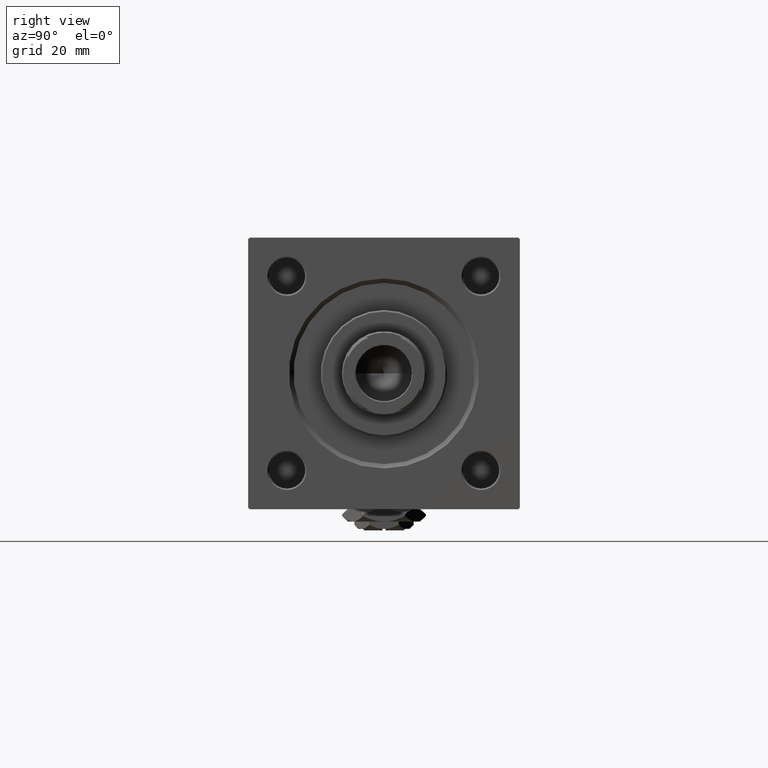
[diagram: clean part render]
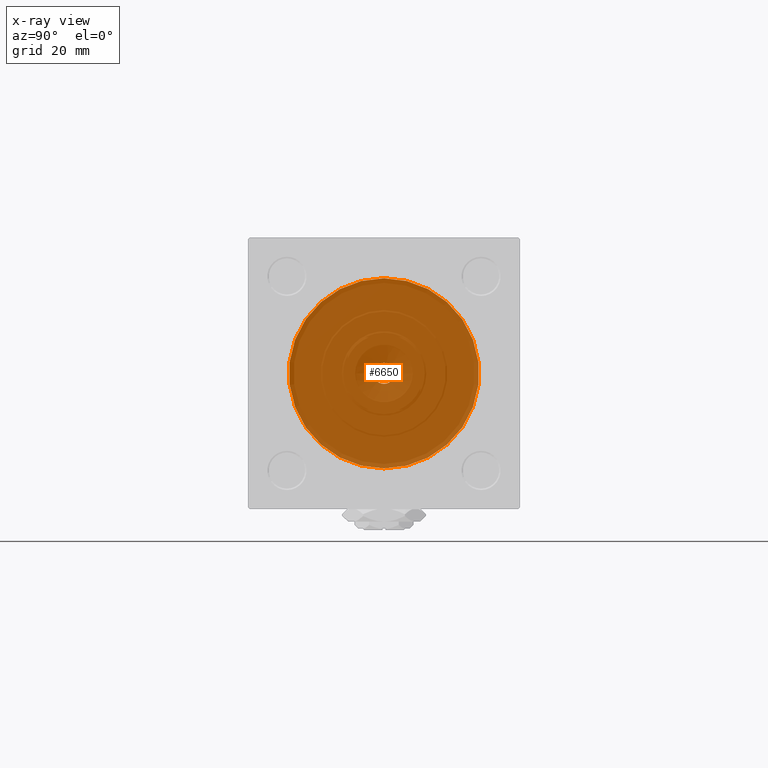
[diagram: x-ray — body ghosted, one internal face saturated and labeled with its STEP entity id]
A machine part, right view, then the same camera in x-ray: the body is ghosted and one INTERNAL B-rep face — a face not visible from any outside direction — is saturated and labeled: STEP entity #6650.
In plain terms, the highlighted planar face has unit normal (-1, 0, 0).
Its self-contained STEP definition (entity closure, byte-faithful):
#628 = CIRCLE ( 'NONE', #4021, 31.50000000000000000 ) ;
#4021 = AXIS2_PLACEMENT_3D ( 'NONE', #37888, #22297, #18572 ) ;
#4132 = CIRCLE ( 'NONE', #6667, 31.50000000000000000 ) ;
#4943 = EDGE_CURVE ( 'NONE', #52292, #5738, #14216, .T. ) ;
#5738 = VERTEX_POINT ( 'NONE', #31496 ) ;
#6650 = ADVANCED_FACE ( 'NONE', ( #35152, #22748 ), #47065, .F. ) ;
#6667 = AXIS2_PLACEMENT_3D ( 'NONE', #18213, #51244, #6848 ) ;
#6848 = DIRECTION ( 'NONE',  ( 0.000000000000000000, 0.000000000000000000, -1.000000000000000000 ) ) ;
#10934 = AXIS2_PLACEMENT_3D ( 'NONE', #38860, #46546, #46804 ) ;
#11293 = CARTESIAN_POINT ( 'NONE',  ( 37.00000000000000000, 1.255552203348951850E-15, -31.50000000000000000 ) ) ;
#12178 = AXIS2_PLACEMENT_3D ( 'NONE', #41632, #13334, #45081 ) ;
#13334 = DIRECTION ( 'NONE',  ( -1.000000000000000000, 0.000000000000000000, -0.000000000000000000 ) ) ;
#13480 = VERTEX_POINT ( 'NONE', #45948 ) ;
#14216 = CIRCLE ( 'NONE', #40386, 3.500000000000000000 ) ;
#14263 = CARTESIAN_POINT ( 'NONE',  ( 37.00000000000000711, 0.000000000000000000, 0.000000000000000000 ) ) ;
#15329 = EDGE_LOOP ( 'NONE', ( #17675, #42602 ) ) ;
#17675 = ORIENTED_EDGE ( 'NONE', *, *, #38313, .T. ) ;
#18104 = CIRCLE ( 'NONE', #12178, 3.500000000000000000 ) ;
#18213 = CARTESIAN_POINT ( 'NONE',  ( 37.00000000000000000, -2.602085213965210642E-15, 0.000000000000000000 ) ) ;
#18572 = DIRECTION ( 'NONE',  ( 0.000000000000000000, 0.000000000000000000, -1.000000000000000000 ) ) ;
#20250 = VERTEX_POINT ( 'NONE', #11293 ) ;
#22297 = DIRECTION ( 'NONE',  ( 1.000000000000000000, 0.000000000000000000, 0.000000000000000000 ) ) ;
#22748 = FACE_OUTER_BOUND ( 'NONE', #37970, .T. ) ;
#25625 = ORIENTED_EDGE ( 'NONE', *, *, #52011, .T. ) ;
#26277 = CARTESIAN_POINT ( 'NONE',  ( 37.00000000000000711, 4.286263797015736595E-16, -3.500000000000000000 ) ) ;
#28042 = ORIENTED_EDGE ( 'NONE', *, *, #45219, .T. ) ;
#31496 = CARTESIAN_POINT ( 'NONE',  ( 37.00000000000000711, 0.000000000000000000, 3.500000000000000000 ) ) ;
#35152 = FACE_BOUND ( 'NONE', #15329, .T. ) ;
#37803 = DIRECTION ( 'NONE',  ( 0.000000000000000000, 0.000000000000000000, 1.000000000000000000 ) ) ;
#37888 = CARTESIAN_POINT ( 'NONE',  ( 37.00000000000000000, -2.602085213965210642E-15, 0.000000000000000000 ) ) ;
#37970 = EDGE_LOOP ( 'NONE', ( #28042, #25625 ) ) ;
#38313 = EDGE_CURVE ( 'NONE', #5738, #52292, #18104, .T. ) ;
#38860 = CARTESIAN_POINT ( 'NONE',  ( 37.00000000000000000, 0.000000000000000000, 0.000000000000000000 ) ) ;
#40386 = AXIS2_PLACEMENT_3D ( 'NONE', #14263, #46528, #37803 ) ;
#41632 = CARTESIAN_POINT ( 'NONE',  ( 37.00000000000000711, 0.000000000000000000, 0.000000000000000000 ) ) ;
#42602 = ORIENTED_EDGE ( 'NONE', *, *, #4943, .T. ) ;
#45081 = DIRECTION ( 'NONE',  ( 0.000000000000000000, 0.000000000000000000, 1.000000000000000000 ) ) ;
#45219 = EDGE_CURVE ( 'NONE', #13480, #20250, #628, .T. ) ;
#45948 = CARTESIAN_POINT ( 'NONE',  ( 37.00000000000000000, -2.602085213965210642E-15, 31.50000000000000000 ) ) ;
#46528 = DIRECTION ( 'NONE',  ( -1.000000000000000000, 0.000000000000000000, -0.000000000000000000 ) ) ;
#46546 = DIRECTION ( 'NONE',  ( -1.000000000000000000, 0.000000000000000000, -0.000000000000000000 ) ) ;
#46804 = DIRECTION ( 'NONE',  ( -0.000000000000000000, 0.000000000000000000, 1.000000000000000000 ) ) ;
#47065 = PLANE ( 'NONE',  #10934 ) ;
#51244 = DIRECTION ( 'NONE',  ( 1.000000000000000000, 0.000000000000000000, 0.000000000000000000 ) ) ;
#52011 = EDGE_CURVE ( 'NONE', #20250, #13480, #4132, .T. ) ;
#52292 = VERTEX_POINT ( 'NONE', #26277 ) ;